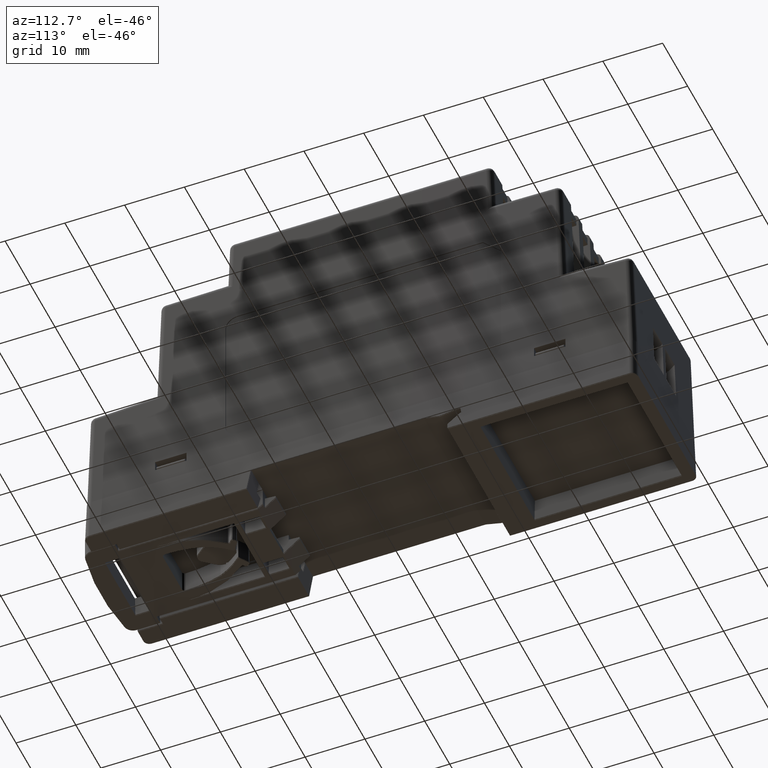
[diagram: clean part render]
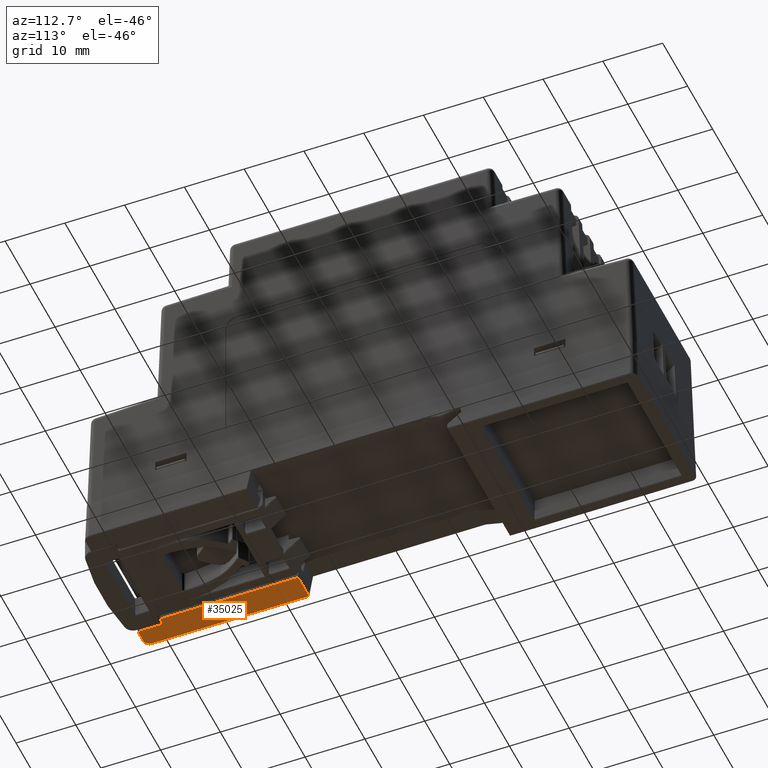
[diagram: same view with one face highlighted and labeled with its STEP entity id]
A machine part, auxiliary view. The second image highlights one B-rep face of the part: STEP entity #35025.
In plain terms, the highlighted planar face has unit normal (-0, 0, 1).
Its self-contained STEP definition (entity closure, byte-faithful):
#28633=CARTESIAN_POINT('',(-8.084324940969001,-18.885819338950000,-7.600000321397000));
#28634=VERTEX_POINT('',#28633);
#28641=CARTESIAN_POINT('',(-12.449013304759999,-18.885819338950000,-7.600000321397000));
#28642=VERTEX_POINT('',#28641);
#28643=CARTESIAN_POINT('',(-12.449013304759999,-18.885819338950000,-7.600000321397000));
#28644=DIRECTION('',(1.0,0.0,0.0));
#28645=VECTOR('',#28644,4.364688363790998);
#28646=LINE('',#28643,#28645);
#28647=EDGE_CURVE('',#28642,#28634,#28646,.T.);
#28758=CARTESIAN_POINT('',(-12.449013304768201,-45.200145687693009,-7.600000321396710));
#28759=VERTEX_POINT('',#28758);
#28760=CARTESIAN_POINT('',(-12.449013304759999,-45.200145687693009,-7.600000321397000));
#28761=DIRECTION('',(0.0,1.0,0.0));
#28762=VECTOR('',#28761,26.314326348743009);
#28763=LINE('',#28760,#28762);
#28764=EDGE_CURVE('',#28759,#28642,#28763,.T.);
#28783=CARTESIAN_POINT('',(-8.084324940969001,-41.987899327539999,-7.600000321397000));
#28784=VERTEX_POINT('',#28783);
#28791=CARTESIAN_POINT('',(-8.084324940969001,-18.885819338950000,-7.600000321397000));
#28792=DIRECTION('',(0.0,-1.0,0.0));
#28793=VECTOR('',#28792,23.102079988589999);
#28794=LINE('',#28791,#28793);
#28795=EDGE_CURVE('',#28634,#28784,#28794,.T.);
#28837=CARTESIAN_POINT('',(-9.284528687981000,-41.987899327539999,-7.600000321397000));
#28838=VERTEX_POINT('',#28837);
#28845=CARTESIAN_POINT('',(-8.084324940969001,-41.987899327539999,-7.600000321397000));
#28846=DIRECTION('',(-1.0,0.0,0.0));
#28847=VECTOR('',#28846,1.200203747011999);
#28848=LINE('',#28845,#28847);
#28849=EDGE_CURVE('',#28784,#28838,#28848,.T.);
#28902=CARTESIAN_POINT('',(-9.284528687981000,-46.199803012669996,-7.600000321397000));
#28903=VERTEX_POINT('',#28902);
#28910=CARTESIAN_POINT('',(-9.284528687981000,-41.987899327539999,-7.600000321397000));
#28911=DIRECTION('',(0.0,-1.0,0.0));
#28912=VECTOR('',#28911,4.211903685129997);
#28913=LINE('',#28910,#28912);
#28914=EDGE_CURVE('',#28838,#28903,#28913,.T.);
#34931=CARTESIAN_POINT('',(-11.449355979790001,-46.199803012669996,-7.600000321397000));
#34932=VERTEX_POINT('',#34931);
#34939=CARTESIAN_POINT('',(-9.284528687981000,-46.199803012669996,-7.600000321397000));
#34940=DIRECTION('',(-1.0,0.0,0.0));
#34941=VECTOR('',#34940,2.164827291809001);
#34942=LINE('',#34939,#34941);
#34943=EDGE_CURVE('',#28903,#34932,#34942,.T.);
#34996=CARTESIAN_POINT('',(-94.216429688000005,18.248643183970003,-7.600000321397000));
#34997=DIRECTION('',(0.0,0.0,1.0));
#34998=DIRECTION('',(1.0,0.0,0.0));
#34999=AXIS2_PLACEMENT_3D('',#34996,#34997,#34998);
#35000=PLANE('',#34999);
#35001=CARTESIAN_POINT('',(-11.449355979790001,-46.199803012667552,-7.600000321397000));
#35002=CARTESIAN_POINT('',(-11.624366832564156,-46.199803012668205,-7.600000321397000));
#35003=CARTESIAN_POINT('',(-11.759338046422906,-46.159565671113427,-7.600000321397000));
#35004=CARTESIAN_POINT('',(-11.877879912650270,-46.103338640936961,-7.600000321397000));
#35005=CARTESIAN_POINT('',(-12.044311639323983,-46.024396390272067,-7.600000321397000));
#35006=CARTESIAN_POINT('',(-12.175566636481669,-45.909620931220722,-7.600000321397000));
#35007=CARTESIAN_POINT('',(-12.275237905673052,-45.763473057197146,-7.600000321397000));
#35008=CARTESIAN_POINT('',(-12.349765849222768,-45.654192814319671,-7.600000321397000));
#35009=CARTESIAN_POINT('',(-12.406795006569210,-45.528802814954716,-7.600000321397000));
#35010=CARTESIAN_POINT('',(-12.434144849532858,-45.371966867943797,-7.600000321397000));
#35011=CARTESIAN_POINT('',(-12.443371804888532,-45.319055475247389,-7.600000321397000));
#35012=CARTESIAN_POINT('',(-12.449013304768361,-45.262130040549280,-7.600000321397000));
#35013=CARTESIAN_POINT('',(-12.449013304768176,-45.200145687689997,-7.600000321397000));
#35014=B_SPLINE_CURVE_WITH_KNOTS('',3,(#35001,#35002,#35003,#35004,#35005,#35006,#35007,#35008,#35009,#35010,#35011,#35012,#35013),.UNSPECIFIED.,.F.,.U.,(4,3,3,3,4),(0.0,0.262606267775103,0.631303133887551,0.906991599054220,1.0),.UNSPECIFIED.);
#35015=EDGE_CURVE('',#34932,#28759,#35014,.T.);
#35016=ORIENTED_EDGE('',*,*,#35015,.T.);
#35017=ORIENTED_EDGE('',*,*,#28764,.T.);
#35018=ORIENTED_EDGE('',*,*,#28647,.T.);
#35019=ORIENTED_EDGE('',*,*,#28795,.T.);
#35020=ORIENTED_EDGE('',*,*,#28849,.T.);
#35021=ORIENTED_EDGE('',*,*,#28914,.T.);
#35022=ORIENTED_EDGE('',*,*,#34943,.T.);
#35023=EDGE_LOOP('',(#35016,#35017,#35018,#35019,#35020,#35021,#35022));
#35024=FACE_OUTER_BOUND('',#35023,.T.);
#35025=ADVANCED_FACE('',(#35024),#35000,.F.);